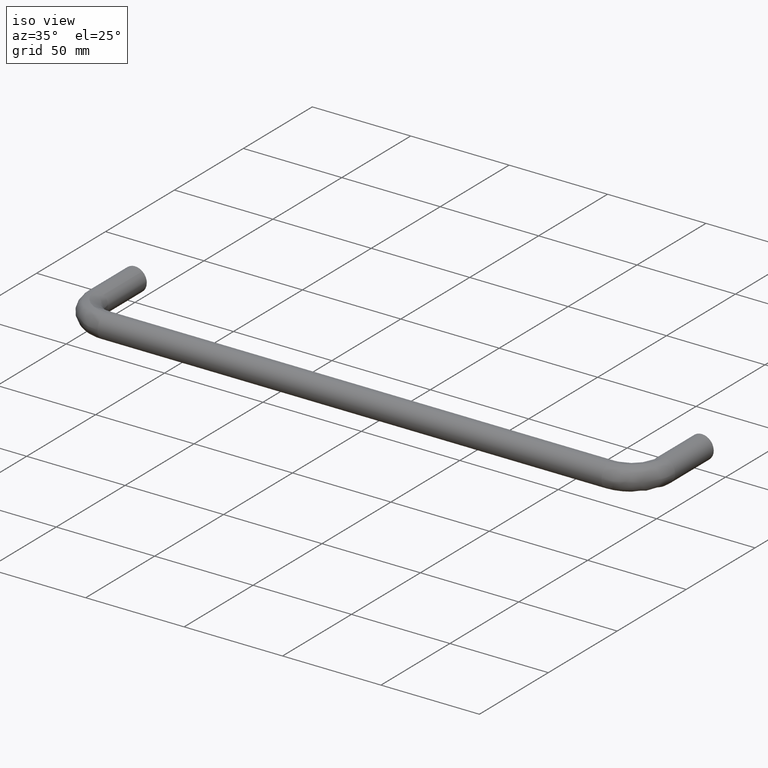
[diagram: clean part render]
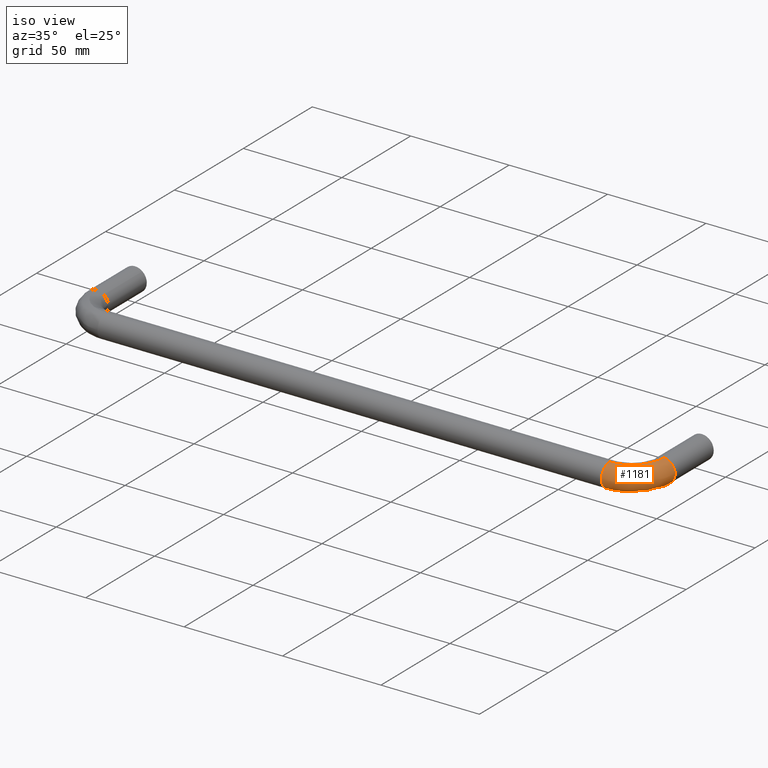
[diagram: same view with one face highlighted and labeled with its STEP entity id]
A machine part, iso view. The second image highlights one B-rep face of the part: STEP entity #1181.
In plain terms, the highlighted face is a freeform B-spline surface patch.
Its self-contained STEP definition (entity closure, byte-faithful):
#426=CARTESIAN_POINT('',(287.924603757332190,-28.000000002493820,-5.999526265180574));
#427=VERTEX_POINT('',#426);
#428=CARTESIAN_POINT('',(291.735087819832070,-28.0,-4.695648941109387));
#429=VERTEX_POINT('',#428);
#430=CARTESIAN_POINT('',(287.924603757332190,-28.000000002493820,-5.999526265180574));
#431=CARTESIAN_POINT('',(287.962300388680550,-28.000000000000007,-6.0));
#432=CARTESIAN_POINT('',(288.0,-28.0,-6.0));
#433=CARTESIAN_POINT('',(290.095293800538400,-28.000000000000004,-6.0));
#434=CARTESIAN_POINT('',(291.735087819832190,-28.000000000000004,-4.695648941109387));
#442=(BOUNDED_CURVE()B_SPLINE_CURVE(2,(#430,#431,#432,#433,#434),.UNSPECIFIED.,.F.,.U.)B_SPLINE_CURVE_WITH_KNOTS((3,2,3),(0.247784295724289,0.250000000000000,0.357863877391858),.UNSPECIFIED.)CURVE()GEOMETRIC_REPRESENTATION_ITEM()RATIONAL_B_SPLINE_CURVE((0.994854295189584,0.997404140970993,1.0,0.873629607027996,0.856305618643938))REPRESENTATION_ITEM(''));
#443=EDGE_CURVE('',#427,#429,#442,.T.);
#540=CARTESIAN_POINT('',(294.0,-28.0,0.0));
#541=VERTEX_POINT('',#540);
#542=CARTESIAN_POINT('',(291.735087819832070,-27.999999999999996,-4.695648941109387));
#543=CARTESIAN_POINT('',(294.000000000000060,-28.000000000000007,-2.894056444895332));
#544=CARTESIAN_POINT('',(294.0,-28.0,0.0));
#552=(BOUNDED_CURVE()B_SPLINE_CURVE(2,(#542,#543,#544),.UNSPECIFIED.,.F.,.U.)B_SPLINE_CURVE_WITH_KNOTS((3,3),(0.357863877391858,0.500000000000000),.UNSPECIFIED.)CURVE()GEOMETRIC_REPRESENTATION_ITEM()RATIONAL_B_SPLINE_CURVE((0.856305618643938,0.833477174158552,1.0))REPRESENTATION_ITEM(''));
#553=EDGE_CURVE('',#429,#541,#552,.T.);
#587=CARTESIAN_POINT('',(288.418399516672080,-28.000000001374751,5.985394042537922));
#588=VERTEX_POINT('',#587);
#604=CARTESIAN_POINT('',(294.0,-28.0,0.0));
#605=CARTESIAN_POINT('',(294.000000000000060,-28.000000000000007,5.595221070068924));
#606=CARTESIAN_POINT('',(288.418399516672140,-28.000000001374747,5.985394042537923));
#614=(BOUNDED_CURVE()B_SPLINE_CURVE(2,(#604,#605,#606),.UNSPECIFIED.,.F.,.U.)B_SPLINE_CURVE_WITH_KNOTS((3,3),(0.500000000000000,0.737833686120246),.UNSPECIFIED.)CURVE()GEOMETRIC_REPRESENTATION_ITEM()RATIONAL_B_SPLINE_CURVE((1.0,0.721360504519892,0.972879875509541))REPRESENTATION_ITEM(''));
#615=EDGE_CURVE('',#541,#588,#614,.T.);
#642=CARTESIAN_POINT('',(271.999999999770130,-43.924603759905253,-5.999526265212910));
#643=VERTEX_POINT('',#642);
#644=CARTESIAN_POINT('',(272.0,-48.467994806515520,-4.004625127143624));
#645=VERTEX_POINT('',#644);
#646=CARTESIAN_POINT('',(271.999999999770180,-43.924603759905246,-5.999526265212910));
#647=CARTESIAN_POINT('',(272.000000000000060,-43.962300391253926,-6.0));
#648=CARTESIAN_POINT('',(272.0,-44.0,-6.0));
#649=CARTESIAN_POINT('',(272.000000000000060,-46.679557554470939,-5.999999999999999));
#650=CARTESIAN_POINT('',(272.0,-48.467994806515520,-4.004625127143624));
#658=(BOUNDED_CURVE()B_SPLINE_CURVE(2,(#646,#647,#648,#649,#650),.UNSPECIFIED.,.F.,.U.)B_SPLINE_CURVE_WITH_KNOTS((3,2,3),(0.247784295875141,0.250000000000000,0.383245959685824),.UNSPECIFIED.)CURVE()GEOMETRIC_REPRESENTATION_ITEM()RATIONAL_B_SPLINE_CURVE((0.994854295536787,0.997404141147727,1.0,0.843892647894926,0.854190687351879))REPRESENTATION_ITEM(''));
#659=EDGE_CURVE('',#643,#645,#658,.T.);
#771=CARTESIAN_POINT('',(272.0,-49.999999999999993,0.0));
#772=VERTEX_POINT('',#771);
#773=CARTESIAN_POINT('',(272.0,-48.467994806515520,-4.004625127143624));
#774=CARTESIAN_POINT('',(272.000000000000060,-49.999999999999993,-2.295353714534892));
#775=CARTESIAN_POINT('',(272.0,-49.999999999999993,0.0));
#783=(BOUNDED_CURVE()B_SPLINE_CURVE(2,(#773,#774,#775),.UNSPECIFIED.,.F.,.U.)B_SPLINE_CURVE_WITH_KNOTS((3,3),(0.383245959685825,0.500000000000000),.UNSPECIFIED.)CURVE()GEOMETRIC_REPRESENTATION_ITEM()RATIONAL_B_SPLINE_CURVE((0.854190687351879,0.863214133291622,1.0))REPRESENTATION_ITEM(''));
#784=EDGE_CURVE('',#645,#772,#783,.T.);
#786=CARTESIAN_POINT('',(272.000000003291400,-44.418399524233124,5.985394042009387));
#787=VERTEX_POINT('',#786);
#788=CARTESIAN_POINT('',(272.0,-49.999999999999993,0.0));
#789=CARTESIAN_POINT('',(272.0,-49.999999999999986,5.595221055898364));
#790=CARTESIAN_POINT('',(272.000000003291400,-44.418399524233124,5.985394042009387));
#798=(BOUNDED_CURVE()B_SPLINE_CURVE(2,(#788,#789,#790),.UNSPECIFIED.,.F.,.U.)B_SPLINE_CURVE_WITH_KNOTS((3,3),(0.500000000000000,0.737833685685740),.UNSPECIFIED.)CURVE()GEOMETRIC_REPRESENTATION_ITEM()RATIONAL_B_SPLINE_CURVE((1.0,0.721360505028947,0.972879874590524))REPRESENTATION_ITEM(''));
#799=EDGE_CURVE('',#772,#787,#798,.T.);
#1110=CARTESIAN_POINT('',(271.999999999770180,-43.924603759905239,-5.999526265212911));
#1111=CARTESIAN_POINT('',(287.924603755712270,-43.924603761159759,-5.999526265222896));
#1112=CARTESIAN_POINT('',(287.924603757332140,-28.000000002493827,-5.999526265180575));
#1120=(BOUNDED_CURVE()B_SPLINE_CURVE(2,(#1110,#1111,#1112),.UNSPECIFIED.,.F.,.U.)B_SPLINE_CURVE_WITH_KNOTS((3,3),(-1.734750791688408,-0.265249208667046),.UNSPECIFIED.)CURVE()GEOMETRIC_REPRESENTATION_ITEM()RATIONAL_B_SPLINE_CURVE((0.889029723587076,0.628638946269655,0.889029723461105))REPRESENTATION_ITEM(''));
#1121=EDGE_CURVE('',#643,#427,#1120,.T.);
#1126=CARTESIAN_POINT('',(272.000000003291350,-44.418399524233138,5.985394042009387));
#1127=CARTESIAN_POINT('',(288.418399506703050,-44.418399502869917,5.985394043042592));
#1128=CARTESIAN_POINT('',(288.418399516672200,-28.000000001374751,5.985394042537922));
#1136=(BOUNDED_CURVE()B_SPLINE_CURVE(2,(#1126,#1127,#1128),.UNSPECIFIED.,.F.,.U.)B_SPLINE_CURVE_WITH_KNOTS((3,3),(-1.734750791241791,-0.265249208515610),.UNSPECIFIED.)CURVE()GEOMETRIC_REPRESENTATION_ITEM()RATIONAL_B_SPLINE_CURVE((0.869031711730937,0.614498216635452,0.869031711814979))REPRESENTATION_ITEM(''));
#1137=EDGE_CURVE('',#787,#588,#1136,.T.);
#1142=CARTESIAN_POINT('',(270.898460880172310,-43.802682854873140,-5.998475968233223));
#1143=CARTESIAN_POINT('',(289.069296503228430,-45.069296028254939,-5.998475968233225));
#1144=CARTESIAN_POINT('',(287.802682824221510,-26.898460440443806,-5.998475968233223));
#1145=CARTESIAN_POINT('',(270.895563486278550,-43.844248874622096,-5.998999597252697));
#1146=CARTESIAN_POINT('',(289.114194114733320,-45.114193638510557,-5.998999597252697));
#1147=CARTESIAN_POINT('',(287.844248843889830,-26.895563045393402,-5.998999597252697));
#1148=CARTESIAN_POINT('',(270.475459634616020,-49.871059738107867,-6.074922504523010));
#1149=CARTESIAN_POINT('',(295.624064783054280,-51.624064125686573,-6.074922504523014));
#1150=CARTESIAN_POINT('',(293.871059695685740,-26.475459026027774,-6.074922504523012));
#1151=CARTESIAN_POINT('',(270.470216798978920,-49.946273470730873,-0.075396239300116));
#1152=CARTESIAN_POINT('',(295.705307032553720,-51.705306372925385,-0.075396239300116));
#1153=CARTESIAN_POINT('',(293.946273428162900,-26.470216188297815,-0.075396239300116));
#1154=CARTESIAN_POINT('',(270.465265709110210,-50.017301817861174,5.590277027038185));
#1155=CARTESIAN_POINT('',(295.782028430333920,-51.782027768570600,5.590277027038183));
#1156=CARTESIAN_POINT('',(294.017301775155370,-26.465265096452683,5.590277027038184));
#1157=CARTESIAN_POINT('',(270.861259940986430,-44.336367617653636,5.988357359101864));
#1158=CARTESIAN_POINT('',(289.645757066210930,-45.645756575196799,5.988357359101862));
#1159=CARTESIAN_POINT('',(288.336367585966850,-26.861259486407469,5.988357359101862));
#1160=CARTESIAN_POINT('',(270.864191858904010,-44.294306316175948,5.991304722382124));
#1161=CARTESIAN_POINT('',(289.600324475249750,-45.600323985499855,5.991304722382124));
#1162=CARTESIAN_POINT('',(288.294306284570840,-26.864191405495490,5.991304722382123));
#1170=(BOUNDED_SURFACE()B_SPLINE_SURFACE(2,2,((#1142,#1145,#1148,#1151,#1154,#1157,#1160),(#1143,#1146,#1149,#1152,#1155,#1158,#1161),(#1144,#1147,#1150,#1153,#1156,#1159,#1162)),.UNSPECIFIED.,.F.,.F.,.U.)B_SPLINE_SURFACE_WITH_KNOTS((3,3),(3,1,2,1,3),(0.0,40.091362849880248),(0.0,0.098490920210744,10.039616417165130,19.583096894241329,19.680692539617461),.UNSPECIFIED.)GEOMETRIC_REPRESENTATION_ITEM()RATIONAL_B_SPLINE_SURFACE(((0.921660208583769,0.919001151912351,0.647951709431553,0.916342095240933,0.658687324863928,0.898153808778863,0.900577903946953),(0.604816447541012,0.603071508142697,0.425202094466791,0.601326568744382,0.432247073437895,0.589390960911479,0.590981712703095),(0.921660220268051,0.919001163562923,0.647951717645915,0.916342106857795,0.658687333214390,0.898153820165144,0.900577915363966)))REPRESENTATION_ITEM('')SURFACE());
#1171=ORIENTED_EDGE('',*,*,#615,.T.);
#1172=ORIENTED_EDGE('',*,*,#1137,.F.);
#1173=ORIENTED_EDGE('',*,*,#799,.F.);
#1174=ORIENTED_EDGE('',*,*,#784,.F.);
#1175=ORIENTED_EDGE('',*,*,#659,.F.);
#1176=ORIENTED_EDGE('',*,*,#1121,.T.);
#1177=ORIENTED_EDGE('',*,*,#443,.T.);
#1178=ORIENTED_EDGE('',*,*,#553,.T.);
#1179=EDGE_LOOP('',(#1171,#1172,#1173,#1174,#1175,#1176,#1177,#1178));
#1180=FACE_OUTER_BOUND('',#1179,.T.);
#1181=ADVANCED_FACE('',(#1180),#1170,.T.);